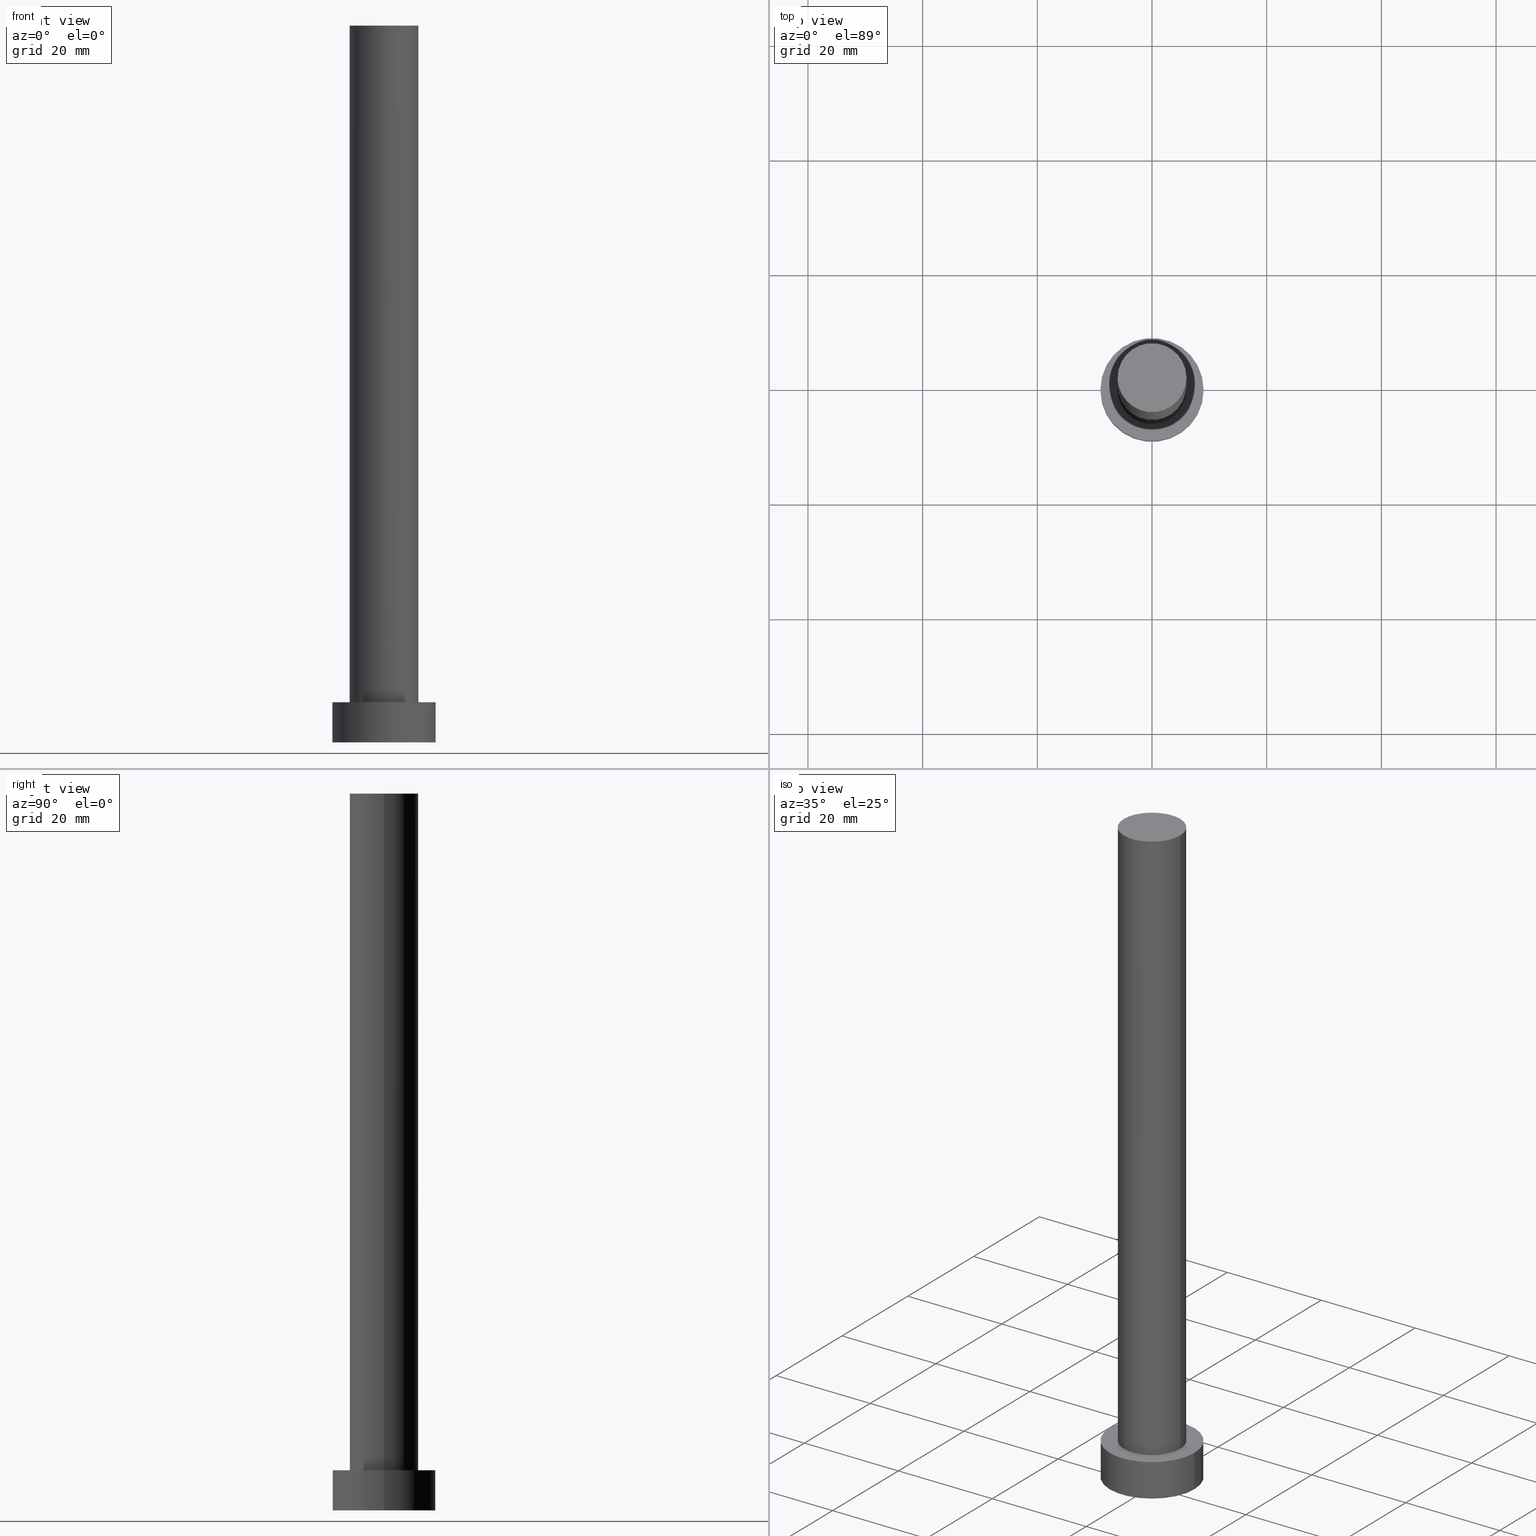
[diagram: canonical four-view strip — front | top / right | iso, engineering-drawing reading convention]
A machine part, canonical four-view strip (front | top / right | iso — engineering-drawing reading convention). The complete STEP part file that produces these views, byte-faithful:
ISO-10303-21;
HEADER;
FILE_DESCRIPTION (( 'STEP AP203' ),
    '1' );
FILE_NAME ('aa08.STEP',
    '2023-02-12T10:49:59',
    ( '' ),
    ( '' ),
    'SwSTEP 2.0',
    'SolidWorks 2019',
    '' );
FILE_SCHEMA (( 'CONFIG_CONTROL_DESIGN' ));
ENDSEC;

DATA;
#1 = CARTESIAN_POINT ( 'NONE',  ( -6.000000000000000888, 0.000000000000000000, 7.000000000000000000 ) ) ;
#2 = ADVANCED_FACE ( 'NONE', ( #19, #14 ), #252, .T. ) ;
#3 = COORDINATED_UNIVERSAL_TIME_OFFSET ( 1, 0, .AHEAD. ) ;
#4 = CARTESIAN_POINT ( 'NONE',  ( 9.000000000000000000, 1.102182119232617714E-15, 7.000000000000000000 ) ) ;
#5 = ORIENTED_EDGE ( 'NONE', *, *, #185, .F. ) ;
#6 = EDGE_CURVE ( 'NONE', #197, #238, #75, .T. ) ;
#7 = VECTOR ( 'NONE', #52, 1000.000000000000000 ) ;
#8 = APPROVAL_PERSON_ORGANIZATION ( #107, #189, #134 ) ;
#9 = CARTESIAN_POINT ( 'NONE',  ( 0.000000000000000000, 0.000000000000000000, 7.000000000000000000 ) ) ;
#10 = AXIS2_PLACEMENT_3D ( 'NONE', #214, #111, #40 ) ;
#11 = PERSON_AND_ORGANIZATION_ROLE ( 'design_owner' ) ;
#12 = VERTEX_POINT ( 'NONE', #172 ) ;
#13 = CYLINDRICAL_SURFACE ( 'NONE', #242, 9.000000000000000000 ) ;
#14 = FACE_OUTER_BOUND ( 'NONE', #65, .T. ) ;
#15 = CARTESIAN_POINT ( 'NONE',  ( 6.000000000000000888, 7.347880794884120722E-16, 125.0000000000000000 ) ) ;
#16 = PERSON_AND_ORGANIZATION ( #142, #173 ) ;
#17 = ORIENTED_EDGE ( 'NONE', *, *, #6, .F. ) ;
#18 = CALENDAR_DATE ( 2023, 12, 2 ) ;
#19 = FACE_BOUND ( 'NONE', #63, .T. ) ;
#20 = CARTESIAN_POINT ( 'NONE',  ( 0.000000000000000000, 0.000000000000000000, 7.000000000000000000 ) ) ;
#21 = UNCERTAINTY_MEASURE_WITH_UNIT (LENGTH_MEASURE( 1.000000000000000082E-05 ), #66, 'distance_accuracy_value', 'NONE');
#22 = VERTEX_POINT ( 'NONE', #15 ) ;
#23 = CARTESIAN_POINT ( 'NONE',  ( 0.000000000000000000, 0.000000000000000000, 7.000000000000000000 ) ) ;
#24 = COORDINATED_UNIVERSAL_TIME_OFFSET ( 1, 0, .AHEAD. ) ;
#25 = AXIS2_PLACEMENT_3D ( 'NONE', #108, #106, #87 ) ;
#26 = PERSON_AND_ORGANIZATION_ROLE ( 'creator' ) ;
#27 = ADVANCED_BREP_SHAPE_REPRESENTATION ( 'aa08', ( #28, #138 ), #203 ) ;
#28 = MANIFOLD_SOLID_BREP ( 'P�idat vysunut�m3', #186 ) ;
#29 = CC_DESIGN_PERSON_AND_ORGANIZATION_ASSIGNMENT ( #179, #26, ( #150 ) ) ;
#30 = CC_DESIGN_APPROVAL ( #189, ( #150 ) ) ;
#31 = AXIS2_PLACEMENT_3D ( 'NONE', #61, #210, #123 ) ;
#32 = CARTESIAN_POINT ( 'NONE',  ( -9.000000000000000000, 0.000000000000000000, 0.000000000000000000 ) ) ;
#33 = LOCAL_TIME ( 11, 49, 59.00000000000000000, #152 ) ;
#34 = CARTESIAN_POINT ( 'NONE',  ( 0.000000000000000000, 0.000000000000000000, 125.0000000000000000 ) ) ;
#35 = CARTESIAN_POINT ( 'NONE',  ( 0.000000000000000000, 0.000000000000000000, 125.0000000000000000 ) ) ;
#36 = PERSON_AND_ORGANIZATION_ROLE ( 'creator' ) ;
#37 = DIRECTION ( 'NONE',  ( 0.000000000000000000, 0.000000000000000000, 1.000000000000000000 ) ) ;
#38 = DIRECTION ( 'NONE',  ( 1.000000000000000000, 0.000000000000000000, 0.000000000000000000 ) ) ;
#39 = ORIENTED_EDGE ( 'NONE', *, *, #162, .F. ) ;
#40 = DIRECTION ( 'NONE',  ( -1.000000000000000000, 0.000000000000000000, 0.000000000000000000 ) ) ;
#41 = DATE_TIME_ROLE ( 'creation_date' ) ;
#42 = CIRCLE ( 'NONE', #96, 6.000000000000000888 ) ;
#43 = AXIS2_PLACEMENT_3D ( 'NONE', #164, #246, #80 ) ;
#44 = DIRECTION ( 'NONE',  ( 0.000000000000000000, 0.000000000000000000, 1.000000000000000000 ) ) ;
#45 = LINE ( 'NONE', #64, #114 ) ;
#46 = DATE_AND_TIME ( #95, #132 ) ;
#47 = DIRECTION ( 'NONE',  ( 1.000000000000000000, 0.000000000000000000, 0.000000000000000000 ) ) ;
#48 = ORIENTED_EDGE ( 'NONE', *, *, #175, .T. ) ;
#49 = ADVANCED_FACE ( 'NONE', ( #169 ), #211, .T. ) ;
#50 = APPLICATION_CONTEXT ( 'configuration controlled 3d designs of mechanical parts and assemblies' ) ;
#51 = DIRECTION ( 'NONE',  ( 0.000000000000000000, 0.000000000000000000, 1.000000000000000000 ) ) ;
#52 = DIRECTION ( 'NONE',  ( -0.000000000000000000, -0.000000000000000000, -1.000000000000000000 ) ) ;
#53 = CALENDAR_DATE ( 2023, 12, 2 ) ;
#54 = ORIENTED_EDGE ( 'NONE', *, *, #195, .T. ) ;
#55 = ORIENTED_EDGE ( 'NONE', *, *, #90, .F. ) ;
#56 = CYLINDRICAL_SURFACE ( 'NONE', #168, 6.000000000000000888 ) ;
#57 = DIRECTION ( 'NONE',  ( 0.000000000000000000, 0.000000000000000000, 1.000000000000000000 ) ) ;
#58 = DIRECTION ( 'NONE',  ( 1.000000000000000000, 0.000000000000000000, 0.000000000000000000 ) ) ;
#59 = SHAPE_DEFINITION_REPRESENTATION ( #78, #27 ) ;
#60 = CC_DESIGN_PERSON_AND_ORGANIZATION_ASSIGNMENT ( #225, #217, ( #200 ) ) ;
#61 = CARTESIAN_POINT ( 'NONE',  ( 0.000000000000000000, 0.000000000000000000, 7.000000000000000000 ) ) ;
#62 = CALENDAR_DATE ( 2023, 12, 2 ) ;
#63 = EDGE_LOOP ( 'NONE', ( #98, #88 ) ) ;
#64 = CARTESIAN_POINT ( 'NONE',  ( -9.000000000000000000, 0.000000000000000000, 7.000000000000000000 ) ) ;
#65 = EDGE_LOOP ( 'NONE', ( #213, #221 ) ) ;
#66 =( LENGTH_UNIT ( ) NAMED_UNIT ( * ) SI_UNIT ( .MILLI., .METRE. ) );
#67 = CARTESIAN_POINT ( 'NONE',  ( 0.000000000000000000, 0.000000000000000000, 0.000000000000000000 ) ) ;
#68 = DIRECTION ( 'NONE',  ( 0.000000000000000000, 0.000000000000000000, 1.000000000000000000 ) ) ;
#69 = DIRECTION ( 'NONE',  ( 0.000000000000000000, 0.000000000000000000, 1.000000000000000000 ) ) ;
#70 = PERSON_AND_ORGANIZATION ( #142, #173 ) ;
#71 = DIRECTION ( 'NONE',  ( 0.000000000000000000, 0.000000000000000000, 1.000000000000000000 ) ) ;
#72 = DIRECTION ( 'NONE',  ( -0.000000000000000000, -0.000000000000000000, -1.000000000000000000 ) ) ;
#73 = CARTESIAN_POINT ( 'NONE',  ( -6.000000000000000888, 0.000000000000000000, 125.0000000000000000 ) ) ;
#74 = SECURITY_CLASSIFICATION_LEVEL ( 'unclassified' ) ;
#75 = CIRCLE ( 'NONE', #135, 9.000000000000000000 ) ;
#76 = CC_DESIGN_APPROVAL ( #154, ( #243 ) ) ;
#77 = ORIENTED_EDGE ( 'NONE', *, *, #245, .T. ) ;
#78 = PRODUCT_DEFINITION_SHAPE ( 'NONE', 'NONE',  #150 ) ;
#79 = EDGE_LOOP ( 'NONE', ( #136, #55, #54, #77 ) ) ;
#80 = DIRECTION ( 'NONE',  ( 1.000000000000000000, 0.000000000000000000, -0.000000000000000000 ) ) ;
#81 = VECTOR ( 'NONE', #182, 1000.000000000000000 ) ;
#82 = VERTEX_POINT ( 'NONE', #229 ) ;
#83 = ADVANCED_FACE ( 'NONE', ( #89 ), #56, .T. ) ;
#84 = ADVANCED_FACE ( 'NONE', ( #126 ), #146, .T. ) ;
#85 = AXIS2_PLACEMENT_3D ( 'NONE', #202, #181, #47 ) ;
#86 = LINE ( 'NONE', #73, #7 ) ;
#87 = DIRECTION ( 'NONE',  ( 1.000000000000000000, 0.000000000000000000, 0.000000000000000000 ) ) ;
#88 = ORIENTED_EDGE ( 'NONE', *, *, #220, .F. ) ;
#89 = FACE_OUTER_BOUND ( 'NONE', #93, .T. ) ;
#90 = EDGE_CURVE ( 'NONE', #12, #218, #190, .T. ) ;
#91 = PERSON_AND_ORGANIZATION ( #142, #173 ) ;
#92 = DIRECTION ( 'NONE',  ( -0.000000000000000000, -0.000000000000000000, -1.000000000000000000 ) ) ;
#93 = EDGE_LOOP ( 'NONE', ( #236, #178, #149, #113 ) ) ;
#94 = DIRECTION ( 'NONE',  ( 1.000000000000000000, 0.000000000000000000, 0.000000000000000000 ) ) ;
#95 = CALENDAR_DATE ( 2023, 12, 2 ) ;
#96 = AXIS2_PLACEMENT_3D ( 'NONE', #35, #37, #129 ) ;
#97 = AXIS2_PLACEMENT_3D ( 'NONE', #23, #44, #94 ) ;
#98 = ORIENTED_EDGE ( 'NONE', *, *, #209, .F. ) ;
#99 = EDGE_CURVE ( 'NONE', #193, #22, #42, .T. ) ;
#100 = EDGE_LOOP ( 'NONE', ( #124, #157 ) ) ;
#101 = AXIS2_PLACEMENT_3D ( 'NONE', #159, #69, #105 ) ;
#102 = MECHANICAL_CONTEXT ( 'NONE', #50, 'mechanical' ) ;
#103 = CC_DESIGN_SECURITY_CLASSIFICATION ( #200, ( #243 ) ) ;
#104 = CC_DESIGN_DATE_AND_TIME_ASSIGNMENT ( #196, #212, ( #200 ) ) ;
#105 = DIRECTION ( 'NONE',  ( 1.000000000000000000, 0.000000000000000000, 0.000000000000000000 ) ) ;
#106 = DIRECTION ( 'NONE',  ( 0.000000000000000000, 0.000000000000000000, 1.000000000000000000 ) ) ;
#107 = PERSON_AND_ORGANIZATION ( #142, #173 ) ;
#108 = CARTESIAN_POINT ( 'NONE',  ( 0.000000000000000000, 0.000000000000000000, 7.000000000000000000 ) ) ;
#109 = APPROVAL_STATUS ( 'not_yet_approved' ) ;
#110 = DIRECTION ( 'NONE',  ( 1.000000000000000000, 0.000000000000000000, -0.000000000000000000 ) ) ;
#111 = DIRECTION ( 'NONE',  ( -0.000000000000000000, -0.000000000000000000, -1.000000000000000000 ) ) ;
#112 = CALENDAR_DATE ( 2023, 12, 2 ) ;
#113 = ORIENTED_EDGE ( 'NONE', *, *, #201, .F. ) ;
#114 = VECTOR ( 'NONE', #244, 1000.000000000000000 ) ;
#115 = CC_DESIGN_PERSON_AND_ORGANIZATION_ASSIGNMENT ( #70, #11, ( #227 ) ) ;
#116 = CC_DESIGN_PERSON_AND_ORGANIZATION_ASSIGNMENT ( #253, #36, ( #243 ) ) ;
#117 = CC_DESIGN_PERSON_AND_ORGANIZATION_ASSIGNMENT ( #170, #215, ( #243 ) ) ;
#118 = FACE_OUTER_BOUND ( 'NONE', #100, .T. ) ;
#119 = APPLICATION_PROTOCOL_DEFINITION ( 'international standard', 'config_control_design', 1994, #176 ) ;
#120 = ORIENTED_EDGE ( 'NONE', *, *, #6, .T. ) ;
#121 = COORDINATED_UNIVERSAL_TIME_OFFSET ( 1, 0, .AHEAD. ) ;
#122 = FACE_OUTER_BOUND ( 'NONE', #188, .T. ) ;
#123 = DIRECTION ( 'NONE',  ( -1.000000000000000000, 0.000000000000000000, 0.000000000000000000 ) ) ;
#124 = ORIENTED_EDGE ( 'NONE', *, *, #99, .T. ) ;
#125 = LOCAL_TIME ( 11, 49, 59.00000000000000000, #251 ) ;
#126 = FACE_OUTER_BOUND ( 'NONE', #216, .T. ) ;
#127 = DATE_AND_TIME ( #62, #125 ) ;
#128 = DATE_AND_TIME ( #18, #247 ) ;
#129 = DIRECTION ( 'NONE',  ( 1.000000000000000000, 0.000000000000000000, 0.000000000000000000 ) ) ;
#130 = DESIGN_CONTEXT ( 'detailed design', #176, 'design' ) ;
#131 = CIRCLE ( 'NONE', #97, 9.000000000000000000 ) ;
#132 = LOCAL_TIME ( 11, 49, 59.00000000000000000, #24 ) ;
#133 = ORIENTED_EDGE ( 'NONE', *, *, #195, .F. ) ;
#134 = APPROVAL_ROLE ( '' ) ;
#135 = AXIS2_PLACEMENT_3D ( 'NONE', #194, #71, #58 ) ;
#136 = ORIENTED_EDGE ( 'NONE', *, *, #175, .F. ) ;
#137 = AXIS2_PLACEMENT_3D ( 'NONE', #151, #249, #38 ) ;
#138 = AXIS2_PLACEMENT_3D ( 'NONE', #67, #68, #183 ) ;
#139 =( NAMED_UNIT ( * ) SI_UNIT ( $, .STERADIAN. ) SOLID_ANGLE_UNIT ( ) );
#140 = VECTOR ( 'NONE', #160, 1000.000000000000000 ) ;
#141 = CARTESIAN_POINT ( 'NONE',  ( 0.000000000000000000, 0.000000000000000000, 125.0000000000000000 ) ) ;
#142 = PERSON ( 'NEUR�EN�', 'NEUR�EN�', 'NEUR�EN�', ('NEUR�EN�'), ('NEUR�EN�'), ('NEUR�EN�') ) ;
#143 = ADVANCED_FACE ( 'NONE', ( #198 ), #13, .T. ) ;
#144 = AXIS2_PLACEMENT_3D ( 'NONE', #9, #57, #167 ) ;
#145 = PLANE ( 'NONE',  #43 ) ;
#146 = CYLINDRICAL_SURFACE ( 'NONE', #10, 6.000000000000000888 ) ;
#147 = APPROVAL_PERSON_ORGANIZATION ( #91, #154, #153 ) ;
#148 = DATE_AND_TIME ( #53, #33 ) ;
#149 = ORIENTED_EDGE ( 'NONE', *, *, #220, .T. ) ;
#150 = PRODUCT_DEFINITION ( 'NEZN�M�', '', #243, #130 ) ;
#151 = CARTESIAN_POINT ( 'NONE',  ( 0.000000000000000000, 0.000000000000000000, 7.000000000000000000 ) ) ;
#152 = COORDINATED_UNIVERSAL_TIME_OFFSET ( 1, 0, .AHEAD. ) ;
#153 = APPROVAL_ROLE ( '' ) ;
#154 = APPROVAL ( #233, 'NEUR�EN�' ) ;
#155 = LINE ( 'NONE', #235, #81 ) ;
#156 = VERTEX_POINT ( 'NONE', #1 ) ;
#157 = ORIENTED_EDGE ( 'NONE', *, *, #171, .T. ) ;
#158 = AXIS2_PLACEMENT_3D ( 'NONE', #250, #231, #110 ) ;
#159 = CARTESIAN_POINT ( 'NONE',  ( 0.000000000000000000, 0.000000000000000000, 0.000000000000000000 ) ) ;
#160 = DIRECTION ( 'NONE',  ( -0.000000000000000000, -0.000000000000000000, -1.000000000000000000 ) ) ;
#161 = ORIENTED_EDGE ( 'NONE', *, *, #201, .T. ) ;
#162 = EDGE_CURVE ( 'NONE', #22, #82, #155, .T. ) ;
#163 = DIRECTION ( 'NONE',  ( 1.000000000000000000, 0.000000000000000000, -0.000000000000000000 ) ) ;
#164 = CARTESIAN_POINT ( 'NONE',  ( 0.000000000000000000, 0.000000000000000000, 0.000000000000000000 ) ) ;
#165 = CC_DESIGN_DATE_AND_TIME_ASSIGNMENT ( #128, #41, ( #150 ) ) ;
#166 = APPROVAL_ROLE ( '' ) ;
#167 = DIRECTION ( 'NONE',  ( 1.000000000000000000, 0.000000000000000000, 0.000000000000000000 ) ) ;
#168 = AXIS2_PLACEMENT_3D ( 'NONE', #34, #72, #254 ) ;
#169 = FACE_OUTER_BOUND ( 'NONE', #199, .T. ) ;
#170 = PERSON_AND_ORGANIZATION ( #142, #173 ) ;
#171 = EDGE_CURVE ( 'NONE', #22, #193, #224, .T. ) ;
#172 = CARTESIAN_POINT ( 'NONE',  ( -9.000000000000000000, 0.000000000000000000, 7.000000000000000000 ) ) ;
#173 = ORGANIZATION ( 'NEUR�EN�', 'NEUR�EN�', '' ) ;
#174 = APPROVAL_STATUS ( 'not_yet_approved' ) ;
#175 = EDGE_CURVE ( 'NONE', #218, #197, #204, .T. ) ;
#176 = APPLICATION_CONTEXT ( 'configuration controlled 3d designs of mechanical parts and assemblies' ) ;
#177 = DIRECTION ( 'NONE',  ( -1.000000000000000000, 0.000000000000000000, 0.000000000000000000 ) ) ;
#178 = ORIENTED_EDGE ( 'NONE', *, *, #162, .T. ) ;
#179 = PERSON_AND_ORGANIZATION ( #142, #173 ) ;
#180 = PRODUCT_RELATED_PRODUCT_CATEGORY ( 'detail', '', ( #227 ) ) ;
#181 = DIRECTION ( 'NONE',  ( 0.000000000000000000, 0.000000000000000000, 1.000000000000000000 ) ) ;
#182 = DIRECTION ( 'NONE',  ( -0.000000000000000000, -0.000000000000000000, -1.000000000000000000 ) ) ;
#183 = DIRECTION ( 'NONE',  ( 1.000000000000000000, 0.000000000000000000, 0.000000000000000000 ) ) ;
#184 = AXIS2_PLACEMENT_3D ( 'NONE', #141, #51, #163 ) ;
#185 = EDGE_CURVE ( 'NONE', #218, #12, #131, .T. ) ;
#186 = CLOSED_SHELL ( 'NONE', ( #83, #49, #143, #2, #222, #84, #241 ) ) ;
#187 = LOCAL_TIME ( 11, 49, 59.00000000000000000, #121 ) ;
#188 = EDGE_LOOP ( 'NONE', ( #228, #17 ) ) ;
#189 = APPROVAL ( #109, 'NEUR�EN�' ) ;
#190 = CIRCLE ( 'NONE', #25, 9.000000000000000000 ) ;
#191 = ORIENTED_EDGE ( 'NONE', *, *, #209, .T. ) ;
#192 = APPROVAL_DATE_TIME ( #127, #154 ) ;
#193 = VERTEX_POINT ( 'NONE', #237 ) ;
#194 = CARTESIAN_POINT ( 'NONE',  ( 0.000000000000000000, 0.000000000000000000, 0.000000000000000000 ) ) ;
#195 = EDGE_CURVE ( 'NONE', #12, #238, #45, .T. ) ;
#196 = DATE_AND_TIME ( #112, #187 ) ;
#197 = VERTEX_POINT ( 'NONE', #207 ) ;
#198 = FACE_OUTER_BOUND ( 'NONE', #79, .T. ) ;
#199 = EDGE_LOOP ( 'NONE', ( #5, #48, #120, #133 ) ) ;
#200 = SECURITY_CLASSIFICATION ( '', '', #74 ) ;
#201 = EDGE_CURVE ( 'NONE', #193, #156, #86, .T. ) ;
#202 = CARTESIAN_POINT ( 'NONE',  ( 0.000000000000000000, 0.000000000000000000, 125.0000000000000000 ) ) ;
#203 =( GEOMETRIC_REPRESENTATION_CONTEXT ( 3 ) GLOBAL_UNCERTAINTY_ASSIGNED_CONTEXT ( ( #21 ) ) GLOBAL_UNIT_ASSIGNED_CONTEXT ( ( #66, #223, #139 ) ) REPRESENTATION_CONTEXT ( 'NONE', 'WORKASPACE' ) );
#204 = LINE ( 'NONE', #4, #140 ) ;
#205 = APPLICATION_PROTOCOL_DEFINITION ( 'international standard', 'config_control_design', 1994, #50 ) ;
#206 = PLANE ( 'NONE',  #184 ) ;
#207 = CARTESIAN_POINT ( 'NONE',  ( 9.000000000000000000, 1.102182119232617714E-15, 0.000000000000000000 ) ) ;
#208 = CIRCLE ( 'NONE', #144, 6.000000000000000888 ) ;
#209 = EDGE_CURVE ( 'NONE', #156, #82, #255, .T. ) ;
#210 = DIRECTION ( 'NONE',  ( -0.000000000000000000, -0.000000000000000000, -1.000000000000000000 ) ) ;
#211 = CYLINDRICAL_SURFACE ( 'NONE', #31, 9.000000000000000000 ) ;
#212 = DATE_TIME_ROLE ( 'classification_date' ) ;
#213 = ORIENTED_EDGE ( 'NONE', *, *, #90, .T. ) ;
#214 = CARTESIAN_POINT ( 'NONE',  ( 0.000000000000000000, 0.000000000000000000, 125.0000000000000000 ) ) ;
#215 = PERSON_AND_ORGANIZATION_ROLE ( 'design_supplier' ) ;
#216 = EDGE_LOOP ( 'NONE', ( #39, #240, #161, #191 ) ) ;
#217 = PERSON_AND_ORGANIZATION_ROLE ( 'classification_officer' ) ;
#218 = VERTEX_POINT ( 'NONE', #230 ) ;
#219 = CIRCLE ( 'NONE', #101, 9.000000000000000000 ) ;
#220 = EDGE_CURVE ( 'NONE', #82, #156, #208, .T. ) ;
#221 = ORIENTED_EDGE ( 'NONE', *, *, #185, .T. ) ;
#222 = ADVANCED_FACE ( 'NONE', ( #122 ), #145, .F. ) ;
#223 =( NAMED_UNIT ( * ) PLANE_ANGLE_UNIT ( ) SI_UNIT ( $, .RADIAN. ) );
#224 = CIRCLE ( 'NONE', #85, 6.000000000000000888 ) ;
#225 = PERSON_AND_ORGANIZATION ( #142, #173 ) ;
#226 = APPROVAL_PERSON_ORGANIZATION ( #16, #248, #166 ) ;
#227 = PRODUCT ( 'aa08', 'aa08', '', ( #102 ) ) ;
#228 = ORIENTED_EDGE ( 'NONE', *, *, #245, .F. ) ;
#229 = CARTESIAN_POINT ( 'NONE',  ( 6.000000000000000888, 7.347880794884120722E-16, 7.000000000000000000 ) ) ;
#230 = CARTESIAN_POINT ( 'NONE',  ( 9.000000000000000000, 1.102182119232617714E-15, 7.000000000000000000 ) ) ;
#231 = DIRECTION ( 'NONE',  ( 0.000000000000000000, 0.000000000000000000, 1.000000000000000000 ) ) ;
#232 = APPROVAL_DATE_TIME ( #148, #248 ) ;
#233 = APPROVAL_STATUS ( 'not_yet_approved' ) ;
#234 = APPROVAL_DATE_TIME ( #46, #189 ) ;
#235 = CARTESIAN_POINT ( 'NONE',  ( 6.000000000000000888, 7.347880794884120722E-16, 125.0000000000000000 ) ) ;
#236 = ORIENTED_EDGE ( 'NONE', *, *, #171, .F. ) ;
#237 = CARTESIAN_POINT ( 'NONE',  ( -6.000000000000000888, 0.000000000000000000, 125.0000000000000000 ) ) ;
#238 = VERTEX_POINT ( 'NONE', #32 ) ;
#239 = CC_DESIGN_APPROVAL ( #248, ( #200 ) ) ;
#240 = ORIENTED_EDGE ( 'NONE', *, *, #99, .F. ) ;
#241 = ADVANCED_FACE ( 'NONE', ( #118 ), #206, .T. ) ;
#242 = AXIS2_PLACEMENT_3D ( 'NONE', #20, #92, #177 ) ;
#243 = PRODUCT_DEFINITION_FORMATION_WITH_SPECIFIED_SOURCE ( 'LIBOVOLN�', '', #227, .NOT_KNOWN. ) ;
#244 = DIRECTION ( 'NONE',  ( -0.000000000000000000, -0.000000000000000000, -1.000000000000000000 ) ) ;
#245 = EDGE_CURVE ( 'NONE', #238, #197, #219, .T. ) ;
#246 = DIRECTION ( 'NONE',  ( 0.000000000000000000, 0.000000000000000000, 1.000000000000000000 ) ) ;
#247 = LOCAL_TIME ( 11, 49, 59.00000000000000000, #3 ) ;
#248 = APPROVAL ( #174, 'NEUR�EN�' ) ;
#249 = DIRECTION ( 'NONE',  ( 0.000000000000000000, 0.000000000000000000, 1.000000000000000000 ) ) ;
#250 = CARTESIAN_POINT ( 'NONE',  ( 0.000000000000000000, 0.000000000000000000, 7.000000000000000000 ) ) ;
#251 = COORDINATED_UNIVERSAL_TIME_OFFSET ( 1, 0, .AHEAD. ) ;
#252 = PLANE ( 'NONE',  #158 ) ;
#253 = PERSON_AND_ORGANIZATION ( #142, #173 ) ;
#254 = DIRECTION ( 'NONE',  ( -1.000000000000000000, 0.000000000000000000, 0.000000000000000000 ) ) ;
#255 = CIRCLE ( 'NONE', #137, 6.000000000000000888 ) ;
ENDSEC;
END-ISO-10303-21;
